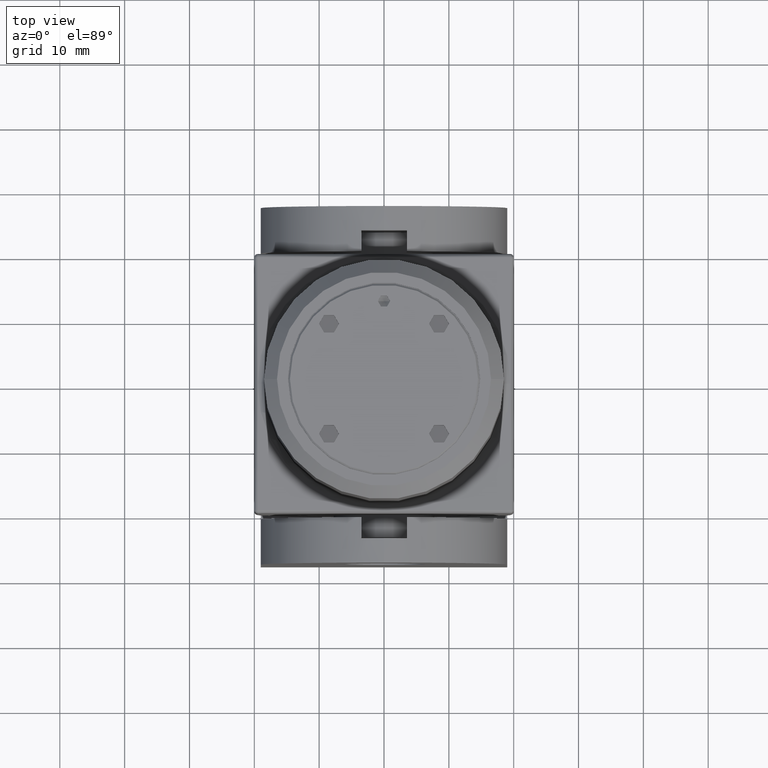
[diagram: clean part render]
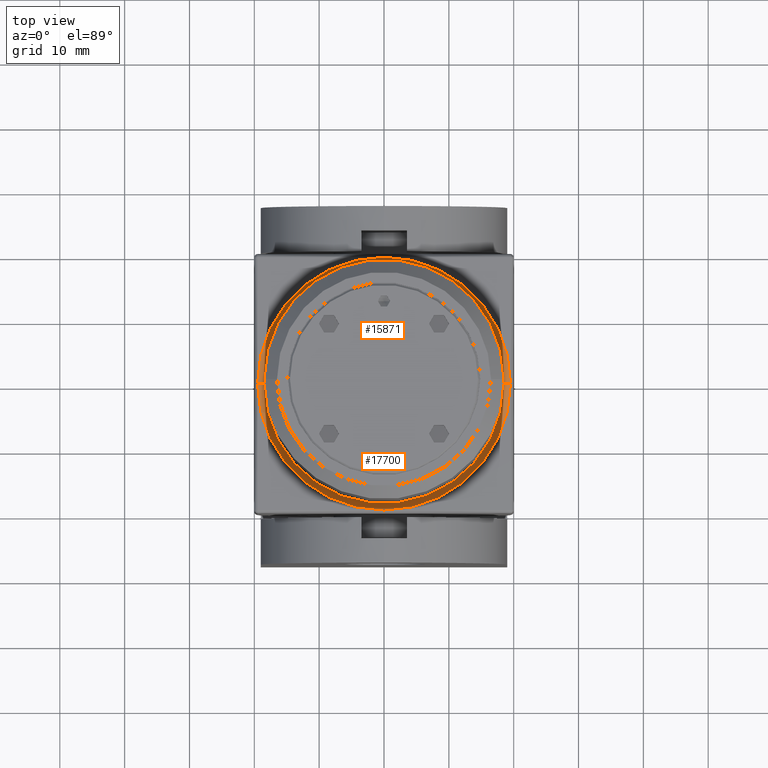
[diagram: same view with one multi-face feature highlighted, each face labeled with its STEP entity id]
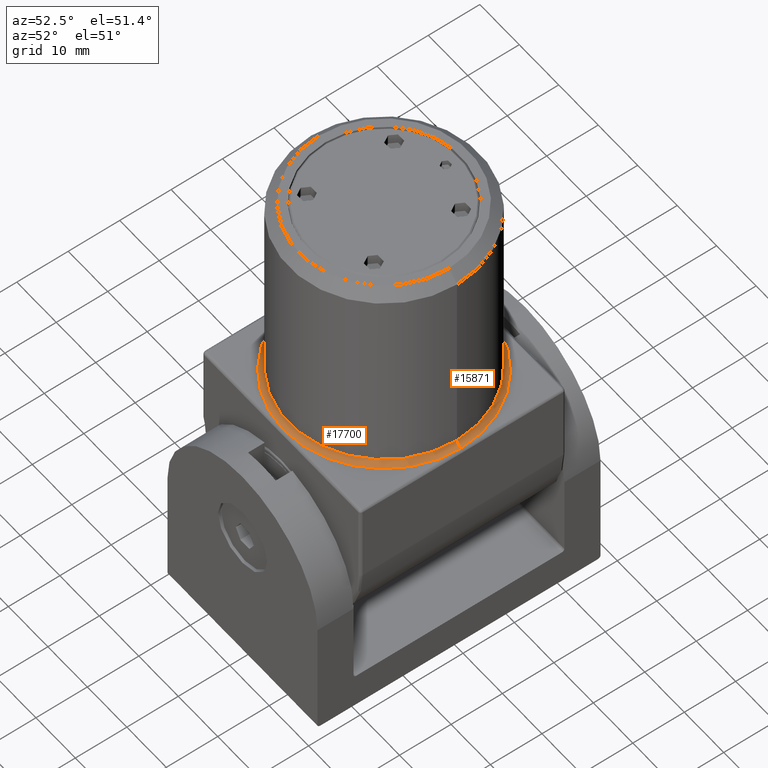
[diagram: same view with one multi-face feature highlighted, each face labeled with its STEP entity id]
A machine part, top view. The highlighted faces form ONE feature: a constant-radius fillet chain: 2 tangent blend faces with common blend radius 1 mm. The faces share edges in the B-rep.
A second angle (auxiliary view) of the same feature is appended — it is thin or edge-on in the first view.
Their STEP definitions:
[1] entity #15871 (Torus):
#489 = CARTESIAN_POINT ( 'NONE',  ( 0.000000000000000000, 0.000000000000000000, 0.000000000000000000 ) ) ;
#851 = EDGE_CURVE ( 'NONE', #10220, #9587, #16736, .T. ) ;
#854 = ORIENTED_EDGE ( 'NONE', *, *, #851, .F. ) ;
#1059 = CIRCLE ( 'NONE', #9622, 1.000000000000000888 ) ;
#1077 = CARTESIAN_POINT ( 'NONE',  ( 19.50000000000000000, 2.388061258337338939E-15, 1.000000000000000888 ) ) ;
#1548 = EDGE_LOOP ( 'NONE', ( #15667, #854, #17733, #2152, #5485 ) ) ;
#1645 = VERTEX_POINT ( 'NONE', #3914 ) ;
#2152 = ORIENTED_EDGE ( 'NONE', *, *, #17243, .T. ) ;
#2997 = DIRECTION ( 'NONE',  ( -0.000000000000000000, -1.000000000000000000, -0.000000000000000000 ) ) ;
#3914 = CARTESIAN_POINT ( 'NONE',  ( -19.50000000000000000, 0.000000000000000000, 0.000000000000000000 ) ) ;
#3985 = AXIS2_PLACEMENT_3D ( 'NONE', #7506, #21121, #5756 ) ;
#4300 = TOROIDAL_SURFACE ( 'NONE', #6083, 19.50000000000000000, 1.000000000000000000 ) ;
#4466 = DIRECTION ( 'NONE',  ( -1.000000000000000000, -1.224646799147353454E-16, 0.000000000000000000 ) ) ;
#4833 = CIRCLE ( 'NONE', #20804, 1.000000000000000000 ) ;
#5425 = AXIS2_PLACEMENT_3D ( 'NONE', #489, #18988, #5464 ) ;
#5464 = DIRECTION ( 'NONE',  ( -1.000000000000000000, 0.000000000000000000, 0.000000000000000000 ) ) ;
#5485 = ORIENTED_EDGE ( 'NONE', *, *, #9593, .F. ) ;
#5756 = DIRECTION ( 'NONE',  ( -1.000000000000000000, 0.000000000000000000, 0.000000000000000000 ) ) ;
#6083 = AXIS2_PLACEMENT_3D ( 'NONE', #12614, #7693, #9456 ) ;
#7122 = CARTESIAN_POINT ( 'NONE',  ( 19.50000000000000000, 0.000000000000000000, 0.000000000000000000 ) ) ;
#7506 = CARTESIAN_POINT ( 'NONE',  ( 0.000000000000000000, 0.000000000000000000, 0.000000000000000000 ) ) ;
#7693 = DIRECTION ( 'NONE',  ( 0.000000000000000000, 0.000000000000000000, -1.000000000000000000 ) ) ;
#9061 = AXIS2_PLACEMENT_3D ( 'NONE', #20818, #10657, #15603 ) ;
#9456 = DIRECTION ( 'NONE',  ( -1.000000000000000000, 0.000000000000000000, 0.000000000000000000 ) ) ;
#9587 = VERTEX_POINT ( 'NONE', #7122 ) ;
#9593 = EDGE_CURVE ( 'NONE', #12601, #20431, #16880, .T. ) ;
#9622 = AXIS2_PLACEMENT_3D ( 'NONE', #1077, #11174, #4466 ) ;
#10220 = VERTEX_POINT ( 'NONE', #13620 ) ;
#10306 = EDGE_CURVE ( 'NONE', #1645, #10220, #17102, .T. ) ;
#10657 = DIRECTION ( 'NONE',  ( -0.000000000000000000, -0.000000000000000000, 1.000000000000000000 ) ) ;
#11174 = DIRECTION ( 'NONE',  ( -1.224646799147353207E-16, 1.000000000000000000, 0.000000000000000000 ) ) ;
#12601 = VERTEX_POINT ( 'NONE', #20133 ) ;
#12614 = CARTESIAN_POINT ( 'NONE',  ( 0.000000000000000000, 0.000000000000000000, 1.000000000000000888 ) ) ;
#13620 = CARTESIAN_POINT ( 'NONE',  ( 0.000000000000000000, 19.50000000000000000, 0.000000000000000000 ) ) ;
#14950 = DIRECTION ( 'NONE',  ( 0.000000000000000000, 0.000000000000000000, -1.000000000000000000 ) ) ;
#15603 = DIRECTION ( 'NONE',  ( -1.000000000000000000, 0.000000000000000000, 0.000000000000000000 ) ) ;
#15667 = ORIENTED_EDGE ( 'NONE', *, *, #19335, .F. ) ;
#15871 = ADVANCED_FACE ( 'NONE', ( #19791 ), #4300, .F. ) ;
#16736 = CIRCLE ( 'NONE', #5425, 19.50000000000000000 ) ;
#16880 = CIRCLE ( 'NONE', #9061, 18.50000000000000000 ) ;
#17102 = CIRCLE ( 'NONE', #3985, 19.50000000000000000 ) ;
#17243 = EDGE_CURVE ( 'NONE', #1645, #20431, #4833, .T. ) ;
#17733 = ORIENTED_EDGE ( 'NONE', *, *, #10306, .F. ) ;
#18355 = CARTESIAN_POINT ( 'NONE',  ( -19.50000000000000000, 0.000000000000000000, 1.000000000000000888 ) ) ;
#18363 = CARTESIAN_POINT ( 'NONE',  ( -18.50000000000000000, 0.000000000000000000, 1.000000000000000888 ) ) ;
#18988 = DIRECTION ( 'NONE',  ( 0.000000000000000000, 0.000000000000000000, -1.000000000000000000 ) ) ;
#19335 = EDGE_CURVE ( 'NONE', #9587, #12601, #1059, .T. ) ;
#19791 = FACE_OUTER_BOUND ( 'NONE', #1548, .T. ) ;
#20133 = CARTESIAN_POINT ( 'NONE',  ( 18.50000000000000000, 2.265596578422603396E-15, 1.000000000000000888 ) ) ;
#20431 = VERTEX_POINT ( 'NONE', #18363 ) ;
#20804 = AXIS2_PLACEMENT_3D ( 'NONE', #18355, #2997, #14950 ) ;
#20818 = CARTESIAN_POINT ( 'NONE',  ( 0.000000000000000000, 0.000000000000000000, 1.000000000000000888 ) ) ;
#21121 = DIRECTION ( 'NONE',  ( 0.000000000000000000, 0.000000000000000000, -1.000000000000000000 ) ) ;
[2] entity #17700 (Torus):
#55 = EDGE_CURVE ( 'NONE', #20431, #12601, #5807, .T. ) ;
#184 = CIRCLE ( 'NONE', #7025, 19.50000000000000000 ) ;
#752 = DIRECTION ( 'NONE',  ( 0.000000000000000000, 0.000000000000000000, -1.000000000000000000 ) ) ;
#932 = EDGE_CURVE ( 'NONE', #17080, #1645, #184, .T. ) ;
#1059 = CIRCLE ( 'NONE', #9622, 1.000000000000000888 ) ;
#1077 = CARTESIAN_POINT ( 'NONE',  ( 19.50000000000000000, 2.388061258337338939E-15, 1.000000000000000888 ) ) ;
#1520 = AXIS2_PLACEMENT_3D ( 'NONE', #10266, #6718, #18642 ) ;
#1645 = VERTEX_POINT ( 'NONE', #3914 ) ;
#2099 = AXIS2_PLACEMENT_3D ( 'NONE', #9300, #752, #14032 ) ;
#2884 = EDGE_CURVE ( 'NONE', #9587, #17080, #9407, .T. ) ;
#2997 = DIRECTION ( 'NONE',  ( -0.000000000000000000, -1.000000000000000000, -0.000000000000000000 ) ) ;
#3201 = ORIENTED_EDGE ( 'NONE', *, *, #17243, .F. ) ;
#3914 = CARTESIAN_POINT ( 'NONE',  ( -19.50000000000000000, 0.000000000000000000, 0.000000000000000000 ) ) ;
#4284 = TOROIDAL_SURFACE ( 'NONE', #2099, 19.50000000000000000, 1.000000000000000000 ) ;
#4466 = DIRECTION ( 'NONE',  ( -1.000000000000000000, -1.224646799147353454E-16, 0.000000000000000000 ) ) ;
#4833 = CIRCLE ( 'NONE', #20804, 1.000000000000000000 ) ;
#5395 = CARTESIAN_POINT ( 'NONE',  ( 0.000000000000000000, 0.000000000000000000, 0.000000000000000000 ) ) ;
#5540 = DIRECTION ( 'NONE',  ( -1.000000000000000000, 0.000000000000000000, 0.000000000000000000 ) ) ;
#5807 = CIRCLE ( 'NONE', #7774, 18.50000000000000000 ) ;
#5965 = ORIENTED_EDGE ( 'NONE', *, *, #55, .F. ) ;
#6718 = DIRECTION ( 'NONE',  ( 0.000000000000000000, 0.000000000000000000, -1.000000000000000000 ) ) ;
#7025 = AXIS2_PLACEMENT_3D ( 'NONE', #5395, #12224, #5540 ) ;
#7122 = CARTESIAN_POINT ( 'NONE',  ( 19.50000000000000000, 0.000000000000000000, 0.000000000000000000 ) ) ;
#7774 = AXIS2_PLACEMENT_3D ( 'NONE', #15955, #17530, #11080 ) ;
#8213 = ORIENTED_EDGE ( 'NONE', *, *, #932, .F. ) ;
#9295 = ORIENTED_EDGE ( 'NONE', *, *, #19335, .T. ) ;
#9300 = CARTESIAN_POINT ( 'NONE',  ( 0.000000000000000000, 0.000000000000000000, 1.000000000000000888 ) ) ;
#9407 = CIRCLE ( 'NONE', #1520, 19.50000000000000000 ) ;
#9587 = VERTEX_POINT ( 'NONE', #7122 ) ;
#9622 = AXIS2_PLACEMENT_3D ( 'NONE', #1077, #11174, #4466 ) ;
#10266 = CARTESIAN_POINT ( 'NONE',  ( 0.000000000000000000, 0.000000000000000000, 0.000000000000000000 ) ) ;
#10290 = ORIENTED_EDGE ( 'NONE', *, *, #2884, .F. ) ;
#11080 = DIRECTION ( 'NONE',  ( -1.000000000000000000, 0.000000000000000000, 0.000000000000000000 ) ) ;
#11174 = DIRECTION ( 'NONE',  ( -1.224646799147353207E-16, 1.000000000000000000, 0.000000000000000000 ) ) ;
#12224 = DIRECTION ( 'NONE',  ( 0.000000000000000000, 0.000000000000000000, -1.000000000000000000 ) ) ;
#12601 = VERTEX_POINT ( 'NONE', #20133 ) ;
#14032 = DIRECTION ( 'NONE',  ( -1.000000000000000000, 0.000000000000000000, 0.000000000000000000 ) ) ;
#14950 = DIRECTION ( 'NONE',  ( 0.000000000000000000, 0.000000000000000000, -1.000000000000000000 ) ) ;
#15955 = CARTESIAN_POINT ( 'NONE',  ( 0.000000000000000000, 0.000000000000000000, 1.000000000000000888 ) ) ;
#17080 = VERTEX_POINT ( 'NONE', #17842 ) ;
#17243 = EDGE_CURVE ( 'NONE', #1645, #20431, #4833, .T. ) ;
#17530 = DIRECTION ( 'NONE',  ( -0.000000000000000000, -0.000000000000000000, 1.000000000000000000 ) ) ;
#17700 = ADVANCED_FACE ( 'NONE', ( #21906 ), #4284, .F. ) ;
#17842 = CARTESIAN_POINT ( 'NONE',  ( 0.000000000000000000, -19.50000000000000000, 0.000000000000000000 ) ) ;
#18053 = EDGE_LOOP ( 'NONE', ( #10290, #9295, #5965, #3201, #8213 ) ) ;
#18355 = CARTESIAN_POINT ( 'NONE',  ( -19.50000000000000000, 0.000000000000000000, 1.000000000000000888 ) ) ;
#18363 = CARTESIAN_POINT ( 'NONE',  ( -18.50000000000000000, 0.000000000000000000, 1.000000000000000888 ) ) ;
#18642 = DIRECTION ( 'NONE',  ( -1.000000000000000000, 0.000000000000000000, 0.000000000000000000 ) ) ;
#19335 = EDGE_CURVE ( 'NONE', #9587, #12601, #1059, .T. ) ;
#20133 = CARTESIAN_POINT ( 'NONE',  ( 18.50000000000000000, 2.265596578422603396E-15, 1.000000000000000888 ) ) ;
#20431 = VERTEX_POINT ( 'NONE', #18363 ) ;
#20804 = AXIS2_PLACEMENT_3D ( 'NONE', #18355, #2997, #14950 ) ;
#21906 = FACE_OUTER_BOUND ( 'NONE', #18053, .T. ) ;